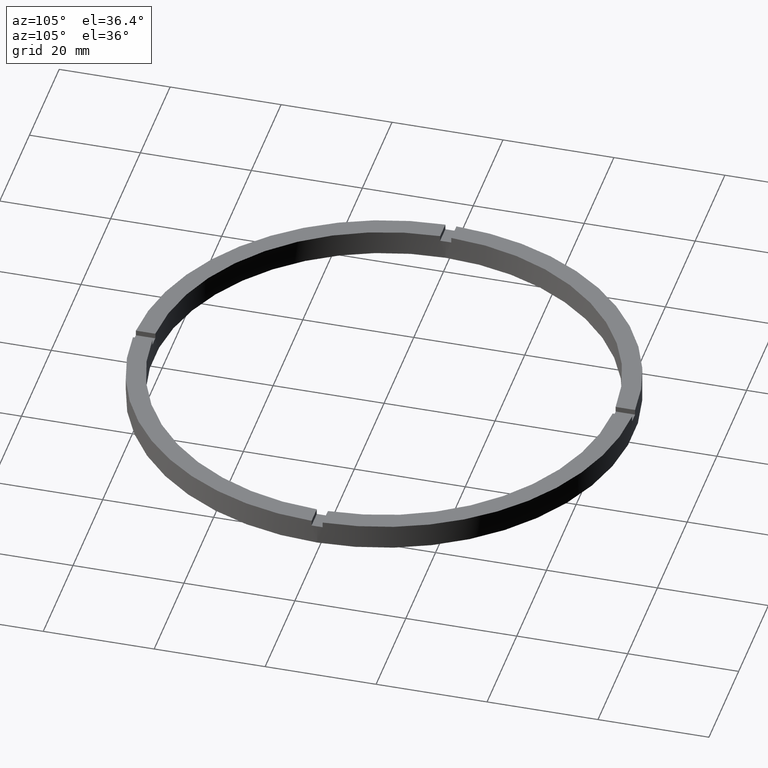
[diagram: clean part render]
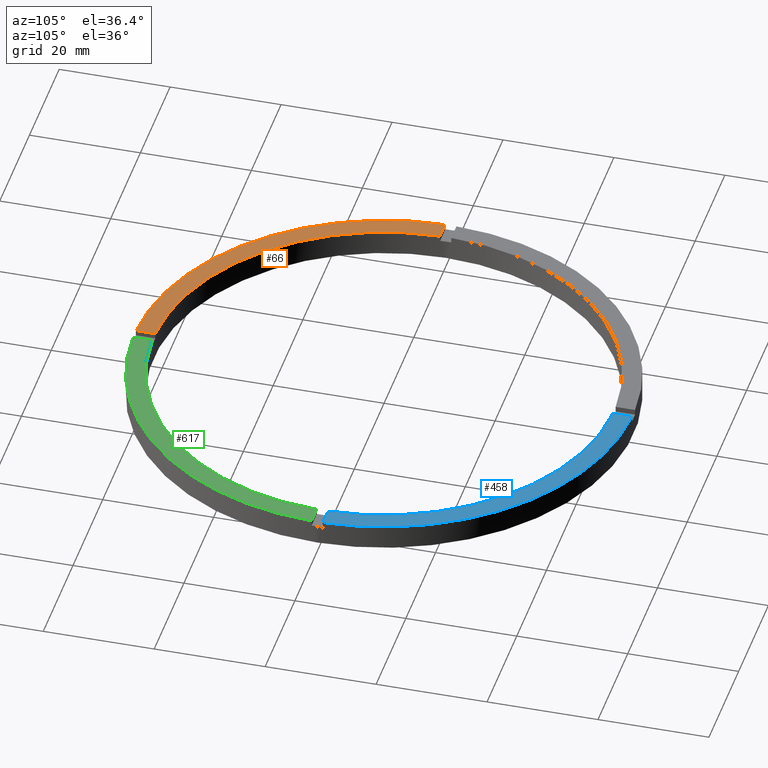
[diagram: same view with three faces highlighted in distinct colors, each labeled with its STEP entity id]
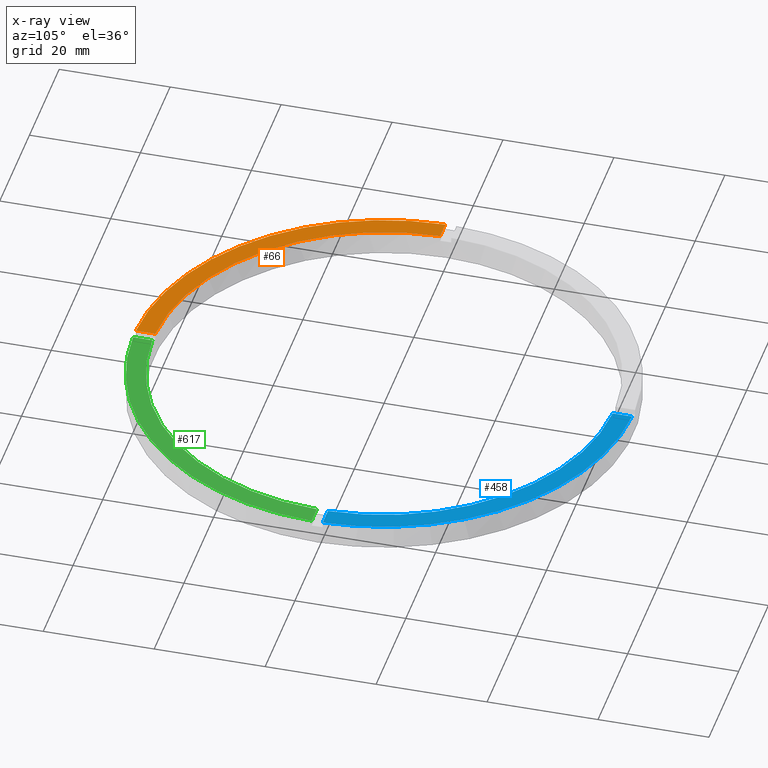
[diagram: x-ray of the same camera — body ghosted, the three highlighted faces saturated]
A machine part, auxiliary view with three faces highlighted in distinct colors.
The next image is the same camera in x-ray (body ghosted, the three faces saturated) — at least one of them is partly hidden behind the body in this view.
Their STEP definitions:

[orange] entity #66 — the highlighted planar face has unit normal (0, 0, 1).
#25 = CARTESIAN_POINT ( 'NONE',  ( -41.48795005781799716, -1.000000000000029088, 4.500000000000000000 ) ) ;
#66 = ADVANCED_FACE ( 'NONE', ( #652 ), #600, .T. ) ;
#87 = CARTESIAN_POINT ( 'NONE',  ( -1.000000000000158540, -41.48795005781799006, 4.500000000000000000 ) ) ;
#89 = EDGE_CURVE ( 'NONE', #707, #726, #382, .T. ) ;
#100 = EDGE_LOOP ( 'NONE', ( #721, #241, #496, #741 ) ) ;
#145 = VECTOR ( 'NONE', #374, 1000.000000000000000 ) ;
#185 = CARTESIAN_POINT ( 'NONE',  ( 0.000000000000000000, 0.000000000000000000, 4.500000000000000000 ) ) ;
#241 = ORIENTED_EDGE ( 'NONE', *, *, #656, .F. ) ;
#282 = EDGE_CURVE ( 'NONE', #747, #477, #432, .T. ) ;
#287 = CIRCLE ( 'NONE', #300, 45.00000000000000711 ) ;
#288 = CIRCLE ( 'NONE', #612, 41.50000000000000000 ) ;
#300 = AXIS2_PLACEMENT_3D ( 'NONE', #318, #420, #371 ) ;
#303 = AXIS2_PLACEMENT_3D ( 'NONE', #185, #363, #504 ) ;
#318 = CARTESIAN_POINT ( 'NONE',  ( 0.000000000000000000, 0.000000000000000000, 4.500000000000000000 ) ) ;
#356 = CARTESIAN_POINT ( 'NONE',  ( -1.000000000000158096, -44.98888751680797071, 4.500000000000000000 ) ) ;
#357 = DIRECTION ( 'NONE',  ( 1.000000000000000000, 1.951563910473907735E-16, -0.000000000000000000 ) ) ;
#363 = DIRECTION ( 'NONE',  ( 0.000000000000000000, 0.000000000000000000, 1.000000000000000000 ) ) ;
#371 = DIRECTION ( 'NONE',  ( 1.000000000000000000, 0.000000000000000000, 0.000000000000000000 ) ) ;
#374 = DIRECTION ( 'NONE',  ( 1.301042606982605074E-16, -1.000000000000000000, 0.000000000000000000 ) ) ;
#382 = LINE ( 'NONE', #519, #145 ) ;
#384 = DIRECTION ( 'NONE',  ( 1.000000000000000000, 0.000000000000000000, 0.000000000000000000 ) ) ;
#420 = DIRECTION ( 'NONE',  ( 0.000000000000000000, 0.000000000000000000, 1.000000000000000000 ) ) ;
#430 = EDGE_CURVE ( 'NONE', #747, #726, #287, .T. ) ;
#432 = LINE ( 'NONE', #704, #441 ) ;
#441 = VECTOR ( 'NONE', #357, 1000.000000000000000 ) ;
#460 = CARTESIAN_POINT ( 'NONE',  ( 0.000000000000000000, 0.000000000000000000, 4.500000000000000000 ) ) ;
#477 = VERTEX_POINT ( 'NONE', #25 ) ;
#496 = ORIENTED_EDGE ( 'NONE', *, *, #282, .F. ) ;
#504 = DIRECTION ( 'NONE',  ( 1.000000000000000000, 0.000000000000000000, -0.000000000000000000 ) ) ;
#519 = CARTESIAN_POINT ( 'NONE',  ( -1.000000000000159428, -35.00000000000018474, 4.500000000000000000 ) ) ;
#593 = CARTESIAN_POINT ( 'NONE',  ( -44.98888751680797071, -1.000000000000029754, 4.500000000000000000 ) ) ;
#600 = PLANE ( 'NONE',  #303 ) ;
#612 = AXIS2_PLACEMENT_3D ( 'NONE', #460, #696, #384 ) ;
#652 = FACE_OUTER_BOUND ( 'NONE', #100, .T. ) ;
#656 = EDGE_CURVE ( 'NONE', #477, #707, #288, .T. ) ;
#696 = DIRECTION ( 'NONE',  ( 0.000000000000000000, 0.000000000000000000, 1.000000000000000000 ) ) ;
#704 = CARTESIAN_POINT ( 'NONE',  ( -35.00000000000019185, -1.000000000000027978, 4.500000000000000000 ) ) ;
#707 = VERTEX_POINT ( 'NONE', #87 ) ;
#721 = ORIENTED_EDGE ( 'NONE', *, *, #89, .F. ) ;
#726 = VERTEX_POINT ( 'NONE', #356 ) ;
#741 = ORIENTED_EDGE ( 'NONE', *, *, #430, .T. ) ;
#747 = VERTEX_POINT ( 'NONE', #593 ) ;

[blue] entity #458 — the highlighted planar face has unit normal (0, 0, 1).
#34 = DIRECTION ( 'NONE',  ( 1.000000000000000000, 0.000000000000000000, -0.000000000000000000 ) ) ;
#51 = CARTESIAN_POINT ( 'NONE',  ( 0.000000000000000000, 0.000000000000000000, 4.500000000000000000 ) ) ;
#56 = CARTESIAN_POINT ( 'NONE',  ( 0.000000000000000000, 0.000000000000000000, 4.500000000000000000 ) ) ;
#85 = CARTESIAN_POINT ( 'NONE',  ( 0.9999999999999737987, 44.98888751680797071, 4.500000000000000000 ) ) ;
#102 = CARTESIAN_POINT ( 'NONE',  ( 0.9999999999999737987, 35.00000000000000000, 4.500000000000000000 ) ) ;
#115 = DIRECTION ( 'NONE',  ( -1.000000000000000000, -6.505213034913025371E-17, -0.000000000000000000 ) ) ;
#146 = CARTESIAN_POINT ( 'NONE',  ( 0.000000000000000000, 0.000000000000000000, 4.500000000000000000 ) ) ;
#165 = ORIENTED_EDGE ( 'NONE', *, *, #414, .F. ) ;
#170 = AXIS2_PLACEMENT_3D ( 'NONE', #51, #574, #500 ) ;
#197 = ORIENTED_EDGE ( 'NONE', *, *, #264, .T. ) ;
#218 = VECTOR ( 'NONE', #714, 1000.000000000000000 ) ;
#239 = VERTEX_POINT ( 'NONE', #85 ) ;
#262 = FACE_OUTER_BOUND ( 'NONE', #428, .T. ) ;
#264 = EDGE_CURVE ( 'NONE', #697, #239, #693, .T. ) ;
#348 = AXIS2_PLACEMENT_3D ( 'NONE', #146, #358, #493 ) ;
#352 = EDGE_CURVE ( 'NONE', #445, #239, #455, .T. ) ;
#358 = DIRECTION ( 'NONE',  ( 0.000000000000000000, 0.000000000000000000, 1.000000000000000000 ) ) ;
#368 = AXIS2_PLACEMENT_3D ( 'NONE', #56, #756, #34 ) ;
#373 = CARTESIAN_POINT ( 'NONE',  ( 41.48795005781800427, 0.9999999999998436806, 4.500000000000000000 ) ) ;
#414 = EDGE_CURVE ( 'NONE', #697, #454, #517, .T. ) ;
#428 = EDGE_LOOP ( 'NONE', ( #687, #725, #165, #197 ) ) ;
#445 = VERTEX_POINT ( 'NONE', #523 ) ;
#454 = VERTEX_POINT ( 'NONE', #373 ) ;
#455 = LINE ( 'NONE', #102, #218 ) ;
#458 = ADVANCED_FACE ( 'NONE', ( #262 ), #667, .T. ) ;
#493 = DIRECTION ( 'NONE',  ( 1.000000000000000000, 0.000000000000000000, 0.000000000000000000 ) ) ;
#500 = DIRECTION ( 'NONE',  ( 1.000000000000000000, 0.000000000000000000, 0.000000000000000000 ) ) ;
#508 = CARTESIAN_POINT ( 'NONE',  ( 34.99999999999999289, 0.9999999999998432365, 4.500000000000000000 ) ) ;
#517 = LINE ( 'NONE', #508, #520 ) ;
#520 = VECTOR ( 'NONE', #115, 1000.000000000000000 ) ;
#523 = CARTESIAN_POINT ( 'NONE',  ( 0.9999999999999737987, 41.48795005781799716, 4.500000000000000000 ) ) ;
#574 = DIRECTION ( 'NONE',  ( 0.000000000000000000, 0.000000000000000000, 1.000000000000000000 ) ) ;
#597 = EDGE_CURVE ( 'NONE', #454, #445, #774, .T. ) ;
#623 = CARTESIAN_POINT ( 'NONE',  ( 44.98888751680797782, 0.9999999999998439026, 4.500000000000000000 ) ) ;
#667 = PLANE ( 'NONE',  #368 ) ;
#687 = ORIENTED_EDGE ( 'NONE', *, *, #352, .F. ) ;
#693 = CIRCLE ( 'NONE', #170, 45.00000000000000711 ) ;
#697 = VERTEX_POINT ( 'NONE', #623 ) ;
#714 = DIRECTION ( 'NONE',  ( 0.000000000000000000, 1.000000000000000000, 0.000000000000000000 ) ) ;
#725 = ORIENTED_EDGE ( 'NONE', *, *, #597, .F. ) ;
#756 = DIRECTION ( 'NONE',  ( 0.000000000000000000, 0.000000000000000000, 1.000000000000000000 ) ) ;
#774 = CIRCLE ( 'NONE', #348, 41.50000000000000000 ) ;

[green] entity #617 — the highlighted planar face has unit normal (0, 0, 1).
#6 = AXIS2_PLACEMENT_3D ( 'NONE', #40, #591, #525 ) ;
#9 = DIRECTION ( 'NONE',  ( 0.000000000000000000, 0.000000000000000000, 1.000000000000000000 ) ) ;
#23 = DIRECTION ( 'NONE',  ( 1.000000000000000000, 6.505213034913025371E-17, 0.000000000000000000 ) ) ;
#40 = CARTESIAN_POINT ( 'NONE',  ( 0.000000000000000000, 0.000000000000000000, 4.500000000000000000 ) ) ;
#41 = CARTESIAN_POINT ( 'NONE',  ( 0.000000000000000000, 0.000000000000000000, 4.500000000000000000 ) ) ;
#95 = PLANE ( 'NONE',  #110 ) ;
#110 = AXIS2_PLACEMENT_3D ( 'NONE', #41, #637, #322 ) ;
#135 = EDGE_CURVE ( 'NONE', #184, #742, #631, .T. ) ;
#163 = ORIENTED_EDGE ( 'NONE', *, *, #393, .F. ) ;
#167 = VERTEX_POINT ( 'NONE', #308 ) ;
#173 = CARTESIAN_POINT ( 'NONE',  ( 34.99999999999999289, -1.000000000000156763, 4.500000000000000000 ) ) ;
#184 = VERTEX_POINT ( 'NONE', #444 ) ;
#191 = EDGE_LOOP ( 'NONE', ( #163, #204, #248, #237 ) ) ;
#204 = ORIENTED_EDGE ( 'NONE', *, *, #590, .F. ) ;
#217 = AXIS2_PLACEMENT_3D ( 'NONE', #716, #9, #592 ) ;
#237 = ORIENTED_EDGE ( 'NONE', *, *, #135, .T. ) ;
#248 = ORIENTED_EDGE ( 'NONE', *, *, #629, .F. ) ;
#278 = LINE ( 'NONE', #675, #529 ) ;
#308 = CARTESIAN_POINT ( 'NONE',  ( 0.9999999999998414602, -41.48795005781800427, 4.500000000000000000 ) ) ;
#322 = DIRECTION ( 'NONE',  ( 1.000000000000000000, 0.000000000000000000, -0.000000000000000000 ) ) ;
#329 = CARTESIAN_POINT ( 'NONE',  ( 41.48795005781799006, -1.000000000000156319, 4.500000000000000000 ) ) ;
#353 = CARTESIAN_POINT ( 'NONE',  ( 44.98888751680797071, -1.000000000000156097, 4.500000000000000000 ) ) ;
#393 = EDGE_CURVE ( 'NONE', #402, #742, #535, .T. ) ;
#402 = VERTEX_POINT ( 'NONE', #329 ) ;
#444 = CARTESIAN_POINT ( 'NONE',  ( 0.9999999999998419042, -44.98888751680797782, 4.500000000000000000 ) ) ;
#525 = DIRECTION ( 'NONE',  ( 1.000000000000000000, 0.000000000000000000, 0.000000000000000000 ) ) ;
#527 = FACE_OUTER_BOUND ( 'NONE', #191, .T. ) ;
#529 = VECTOR ( 'NONE', #773, 1000.000000000000000 ) ;
#533 = VECTOR ( 'NONE', #23, 1000.000000000000000 ) ;
#535 = LINE ( 'NONE', #173, #533 ) ;
#590 = EDGE_CURVE ( 'NONE', #167, #402, #772, .T. ) ;
#591 = DIRECTION ( 'NONE',  ( 0.000000000000000000, 0.000000000000000000, 1.000000000000000000 ) ) ;
#592 = DIRECTION ( 'NONE',  ( 1.000000000000000000, 0.000000000000000000, 0.000000000000000000 ) ) ;
#617 = ADVANCED_FACE ( 'NONE', ( #527 ), #95, .T. ) ;
#629 = EDGE_CURVE ( 'NONE', #184, #167, #278, .T. ) ;
#631 = CIRCLE ( 'NONE', #6, 45.00000000000000711 ) ;
#637 = DIRECTION ( 'NONE',  ( 0.000000000000000000, 0.000000000000000000, 1.000000000000000000 ) ) ;
#675 = CARTESIAN_POINT ( 'NONE',  ( 0.9999999999998406830, -35.00000000000018474, 4.500000000000000000 ) ) ;
#716 = CARTESIAN_POINT ( 'NONE',  ( 0.000000000000000000, 0.000000000000000000, 4.500000000000000000 ) ) ;
#742 = VERTEX_POINT ( 'NONE', #353 ) ;
#772 = CIRCLE ( 'NONE', #217, 41.50000000000000000 ) ;
#773 = DIRECTION ( 'NONE',  ( -1.301042606982605074E-16, 1.000000000000000000, -0.000000000000000000 ) ) ;